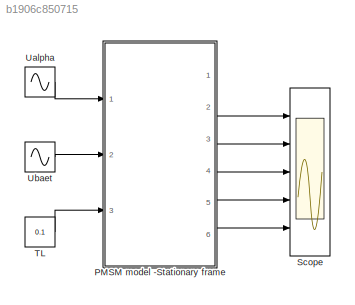
MODEL slx_b1906c850715
KIND model
CONFIG InitFcn = R=0.875;\nLd=8.5e-3;\nLq=8.5e-3;\nJ=0.001; % Inertia of of the whole machine system is 2,5 times of motor inertia;\nFf=0.175;\n\nL0=0.5*(Ld+Lq);\nL2=0.5*(Ld-Lq);
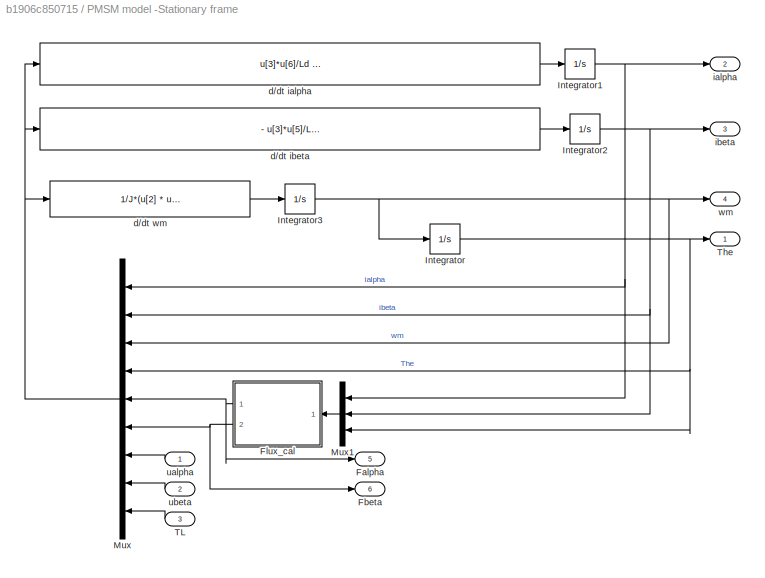
BLOCK [SubSystem] PMSM model -Stationary frame 
  Ports = [3, 6]
  RequestExecContextInheritance = off
BLOCK [Outport] PMSM model -Stationary frame /Falpha
  IconDisplay = Port number
  Port = 5
BLOCK [Outport] PMSM model -Stationary frame /Fbeta
  IconDisplay = Port number
  Port = 6
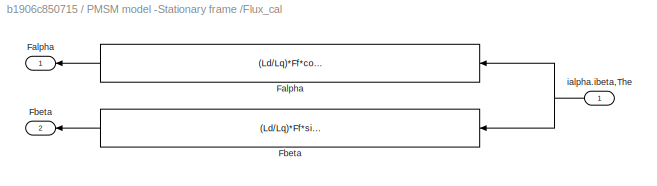
BLOCK [SubSystem] PMSM model -Stationary frame /Flux_cal
  Ports = [1, 2]
  RequestExecContextInheritance = off
BLOCK [Fcn] PMSM model -Stationary frame /Flux_cal/ Falpha
  Expr = (Ld/Lq)*Ff*cos(u[3]) - (1-Ld/Lq)*(L0*(u[1]*cos(2*u[3]) + u[2]*sin(2*u[3])) +L2*u[1])
BLOCK [Fcn] PMSM model -Stationary frame /Flux_cal/ Fbeta
  Expr = (Ld/Lq)*Ff*sin(u[3]) + (1-Ld/Lq)*(L0*( - u[1]*sin(2*u[3]) + u[2]*cos(2*u[3])) - L2*u[2])
BLOCK [Outport] PMSM model -Stationary frame /Flux_cal/Falpha
  IconDisplay = Port number
BLOCK [Outport] PMSM model -Stationary frame /Flux_cal/Fbeta
  IconDisplay = Port number
  Port = 2
BLOCK [Inport] PMSM model -Stationary frame /Flux_cal/ialpha.ibeta,The
  IconDisplay = Port number
BLOCK [Integrator] PMSM model -Stationary frame /Integrator
  Ports = [1, 1]
BLOCK [Integrator] PMSM model -Stationary frame /Integrator1
  Ports = [1, 1]
BLOCK [Integrator] PMSM model -Stationary frame /Integrator2
  Ports = [1, 1]
BLOCK [Integrator] PMSM model -Stationary frame /Integrator3
  Ports = [1, 1]
BLOCK [Mux] PMSM model -Stationary frame /Mux
  DisplayOption = bar
  Inputs = 9
  Ports = [9, 1]
BLOCK [Mux] PMSM model -Stationary frame /Mux1
  DisplayOption = bar
  Inputs = 3
  Ports = [3, 1]
BLOCK [Inport] PMSM model -Stationary frame /TL
  IconDisplay = Port number
  Port = 3
BLOCK [Outport] PMSM model -Stationary frame /The
  IconDisplay = Port number
BLOCK [Fcn] PMSM model -Stationary frame /d//dt ialpha
  Expr = u[3]*u[6]/Ld + (u[7] - R*u[1])*(cos(u[4])^2/Ld + sin(u[4])^2/Lq) +0.5*(u[8] - R*u[2])*sin(2*u[4])*(1/Ld-1/Lq)
BLOCK [Fcn] PMSM model -Stationary frame /d//dt ibeta
  Expr = - u[3]*u[5]/Ld + (u[8] - R*u[2])*(cos(u[4])^2/Lq + sin(u[4])^2/Ld) +0.5*(u[7] - R*u[1])*sin(2*u[4])*(1/Ld-1/Lq)
BLOCK [Fcn] PMSM model -Stationary frame /d//dt wm
  Expr = 1/J*(u[2] * u[5] -u[1] * u[6] -u[9])
BLOCK [Outport] PMSM model -Stationary frame /ialpha
  IconDisplay = Port number
  Port = 2
BLOCK [Outport] PMSM model -Stationary frame /ibeta
  IconDisplay = Port number
  Port = 3
BLOCK [Inport] PMSM model -Stationary frame /ualpha
  IconDisplay = Port number
BLOCK [Inport] PMSM model -Stationary frame /ubeta
  IconDisplay = Port number
  Port = 2
BLOCK [Outport] PMSM model -Stationary frame /wm
  IconDisplay = Port number
  Port = 4
BLOCK [Scope] Scope
  DataFormat = StructureWithTime
  Floating = off
  LimitDataPoints = off
  NumInputPorts = 5
  Ports = [5]
  SampleTime = 0
  SaveName = ScopeData2
  ShowLegends = off
  TimeRange = 500
  YMax = 15~10~0.2~10~10
  YMin = -10~-10~-0.05~-10~-10
  ZoomMode = xonly
BLOCK [Constant] TL
  Value = 0.1
BLOCK [Sin] Ualpha
  Frequency = 0.1
  Ports = [0, 1]
  SampleTime = 0
BLOCK [Sin] Ubaet
  Frequency = 0.1
  Phase = pi/2
  Ports = [0, 1]
  SampleTime = 0
LINE PMSM model -Stationary frame /Flux_cal/ Falpha:1 -> PMSM model -Stationary frame /Flux_cal/Falpha:1
LINE PMSM model -Stationary frame /Flux_cal/ Fbeta:1 -> PMSM model -Stationary frame /Flux_cal/Fbeta:1
NET PMSM model -Stationary frame /Flux_cal/ialpha.ibeta,The:1 -> PMSM model -Stationary frame /Flux_cal/ Falpha:1, PMSM model -Stationary frame /Flux_cal/ Fbeta:1
NET PMSM model -Stationary frame /Flux_cal:1 -> PMSM model -Stationary frame /Falpha:1, PMSM model -Stationary frame /Mux:5
NET PMSM model -Stationary frame /Flux_cal:2 -> PMSM model -Stationary frame /Fbeta:1, PMSM model -Stationary frame /Mux:6
NET PMSM model -Stationary frame /Integrator1:1 -> PMSM model -Stationary frame /Mux1:1, PMSM model -Stationary frame /Mux:1, PMSM model -Stationary frame /ialpha:1
NET PMSM model -Stationary frame /Integrator2:1 -> PMSM model -Stationary frame /Mux1:2, PMSM model -Stationary frame /Mux:2, PMSM model -Stationary frame /ibeta:1
NET PMSM model -Stationary frame /Integrator3:1 -> PMSM model -Stationary frame /Integrator:1, PMSM model -Stationary frame /Mux:3, PMSM model -Stationary frame /wm:1
NET PMSM model -Stationary frame /Integrator:1 -> PMSM model -Stationary frame /Mux1:3, PMSM model -Stationary frame /Mux:4, PMSM model -Stationary frame /The:1
LINE PMSM model -Stationary frame /Mux1:1 -> PMSM model -Stationary frame /Flux_cal:1
NET PMSM model -Stationary frame /Mux:1 -> PMSM model -Stationary frame /d//dt ialpha:1, PMSM model -Stationary frame /d//dt ibeta:1, PMSM model -Stationary frame /d//dt wm:1
LINE PMSM model -Stationary frame /TL:1 -> PMSM model -Stationary frame /Mux:9
LINE PMSM model -Stationary frame /d//dt ialpha:1 -> PMSM model -Stationary frame /Integrator1:1
LINE PMSM model -Stationary frame /d//dt ibeta:1 -> PMSM model -Stationary frame /Integrator2:1
LINE PMSM model -Stationary frame /d//dt wm:1 -> PMSM model -Stationary frame /Integrator3:1
LINE PMSM model -Stationary frame /ualpha:1 -> PMSM model -Stationary frame /Mux:7
LINE PMSM model -Stationary frame /ubeta:1 -> PMSM model -Stationary frame /Mux:8
LINE PMSM model -Stationary frame :2 -> Scope:1
LINE PMSM model -Stationary frame :3 -> Scope:2
LINE PMSM model -Stationary frame :4 -> Scope:3
LINE PMSM model -Stationary frame :5 -> Scope:4
LINE PMSM model -Stationary frame :6 -> Scope:5
LINE TL:1 -> PMSM model -Stationary frame :3
LINE Ualpha:1 -> PMSM model -Stationary frame :1
LINE Ubaet:1 -> PMSM model -Stationary frame :2
note: NET lines group one-source signal fan-out (src -> all destinations, sorted); 1:1 wires keep LINE
